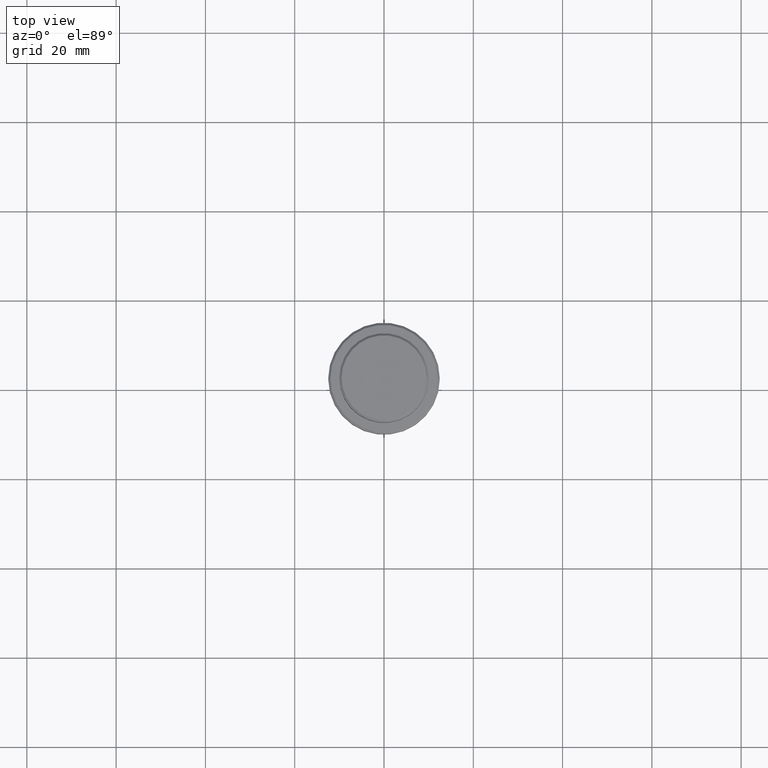
[diagram: clean part render]
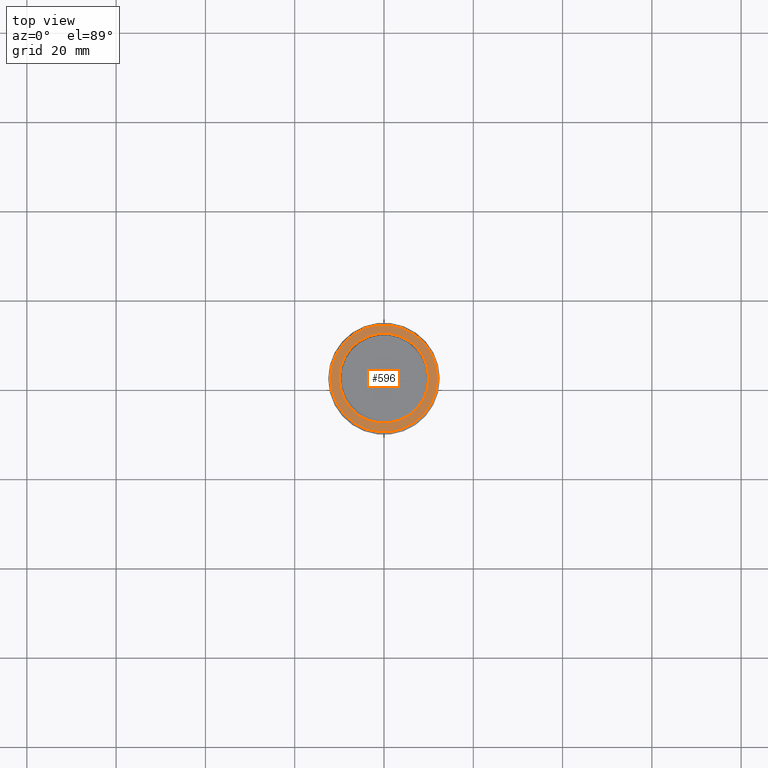
[diagram: same view with one face highlighted and labeled with its STEP entity id]
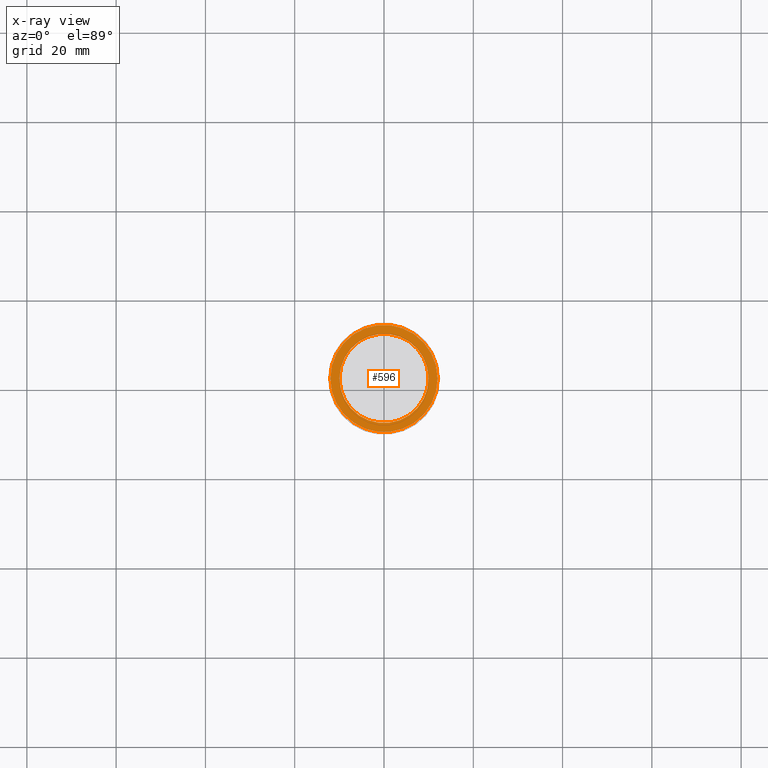
[diagram: x-ray of the same camera — body ghosted, the highlighted face saturated]
A machine part, top view. The second image highlights one B-rep face of the part: STEP entity #596.
The next image is the same camera in x-ray: the body ghosted, the highlighted face saturated — about 0% of this face is hidden behind the body in this view.
In plain terms, the highlighted planar face has unit normal (0, -0, 1).
Its self-contained STEP definition (entity closure, byte-faithful):
#39 = AXIS2_PLACEMENT_3D ( 'NONE', #1086, #105, #867 ) ;
#49 = DIRECTION ( 'NONE',  ( 0.000000000000000000, 0.000000000000000000, -1.000000000000000000 ) ) ;
#85 = CARTESIAN_POINT ( 'NONE',  ( 0.000000000000000000, 0.000000000000000000, -9.000000000000001776 ) ) ;
#102 = CIRCLE ( 'NONE', #1404, 12.00000000000002487 ) ;
#105 = DIRECTION ( 'NONE',  ( -0.000000000000000000, -0.000000000000000000, 1.000000000000000000 ) ) ;
#139 = CARTESIAN_POINT ( 'NONE',  ( 0.000000000000000000, 9.499999999999994671, -9.000000000000001776 ) ) ;
#194 = CARTESIAN_POINT ( 'NONE',  ( -9.999999999999994671, 1.224646799147352665E-15, -9.000000000000001776 ) ) ;
#201 = DIRECTION ( 'NONE',  ( 0.000000000000000000, 0.000000000000000000, -1.000000000000000000 ) ) ;
#219 = CIRCLE ( 'NONE', #39, 12.00000000000002487 ) ;
#224 = VERTEX_POINT ( 'NONE', #869 ) ;
#235 = EDGE_CURVE ( 'NONE', #699, #224, #102, .T. ) ;
#238 = PLANE ( 'NONE',  #944 ) ;
#369 = EDGE_CURVE ( 'NONE', #224, #699, #219, .T. ) ;
#423 = CIRCLE ( 'NONE', #922, 9.999999999999994671 ) ;
#468 = DIRECTION ( 'NONE',  ( 1.000000000000000000, 0.000000000000000000, 0.000000000000000000 ) ) ;
#500 = ORIENTED_EDGE ( 'NONE', *, *, #689, .T. ) ;
#563 = EDGE_LOOP ( 'NONE', ( #1039, #500 ) ) ;
#565 = DIRECTION ( 'NONE',  ( 1.000000000000000000, 0.000000000000000000, 0.000000000000000000 ) ) ;
#576 = CIRCLE ( 'NONE', #685, 9.999999999999994671 ) ;
#577 = CARTESIAN_POINT ( 'NONE',  ( 0.000000000000000000, 0.000000000000000000, -9.000000000000001776 ) ) ;
#596 = ADVANCED_FACE ( 'NONE', ( #877, #767 ), #238, .T. ) ;
#609 = EDGE_CURVE ( 'NONE', #719, #909, #423, .T. ) ;
#628 = DIRECTION ( 'NONE',  ( 1.000000000000000000, 0.000000000000000000, 0.000000000000000000 ) ) ;
#633 = EDGE_LOOP ( 'NONE', ( #797, #1138 ) ) ;
#685 = AXIS2_PLACEMENT_3D ( 'NONE', #577, #49, #468 ) ;
#689 = EDGE_CURVE ( 'NONE', #909, #719, #576, .T. ) ;
#699 = VERTEX_POINT ( 'NONE', #986 ) ;
#719 = VERTEX_POINT ( 'NONE', #757 ) ;
#757 = CARTESIAN_POINT ( 'NONE',  ( 9.999999999999994671, 0.000000000000000000, -9.000000000000001776 ) ) ;
#767 = FACE_BOUND ( 'NONE', #563, .T. ) ;
#797 = ORIENTED_EDGE ( 'NONE', *, *, #235, .T. ) ;
#867 = DIRECTION ( 'NONE',  ( 1.000000000000000000, 0.000000000000000000, 0.000000000000000000 ) ) ;
#869 = CARTESIAN_POINT ( 'NONE',  ( 12.00000000000002487, 1.500192328955509115E-15, -9.000000000000001776 ) ) ;
#877 = FACE_OUTER_BOUND ( 'NONE', #633, .T. ) ;
#909 = VERTEX_POINT ( 'NONE', #194 ) ;
#922 = AXIS2_PLACEMENT_3D ( 'NONE', #85, #201, #628 ) ;
#944 = AXIS2_PLACEMENT_3D ( 'NONE', #139, #1016, #565 ) ;
#986 = CARTESIAN_POINT ( 'NONE',  ( -12.00000000000002487, 0.000000000000000000, -9.000000000000001776 ) ) ;
#1016 = DIRECTION ( 'NONE',  ( 0.000000000000000000, -0.000000000000000000, 1.000000000000000000 ) ) ;
#1039 = ORIENTED_EDGE ( 'NONE', *, *, #609, .T. ) ;
#1086 = CARTESIAN_POINT ( 'NONE',  ( 0.000000000000000000, 0.000000000000000000, -9.000000000000001776 ) ) ;
#1089 = DIRECTION ( 'NONE',  ( 1.000000000000000000, 0.000000000000000000, 0.000000000000000000 ) ) ;
#1138 = ORIENTED_EDGE ( 'NONE', *, *, #369, .T. ) ;
#1303 = CARTESIAN_POINT ( 'NONE',  ( 0.000000000000000000, 0.000000000000000000, -9.000000000000001776 ) ) ;
#1312 = DIRECTION ( 'NONE',  ( -0.000000000000000000, -0.000000000000000000, 1.000000000000000000 ) ) ;
#1404 = AXIS2_PLACEMENT_3D ( 'NONE', #1303, #1312, #1089 ) ;